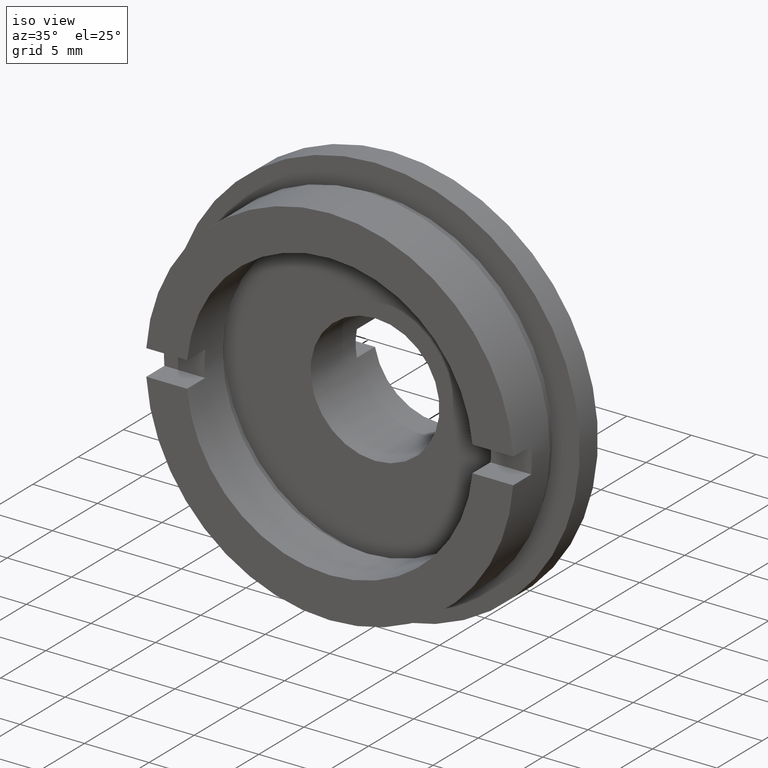
[diagram: clean part render]
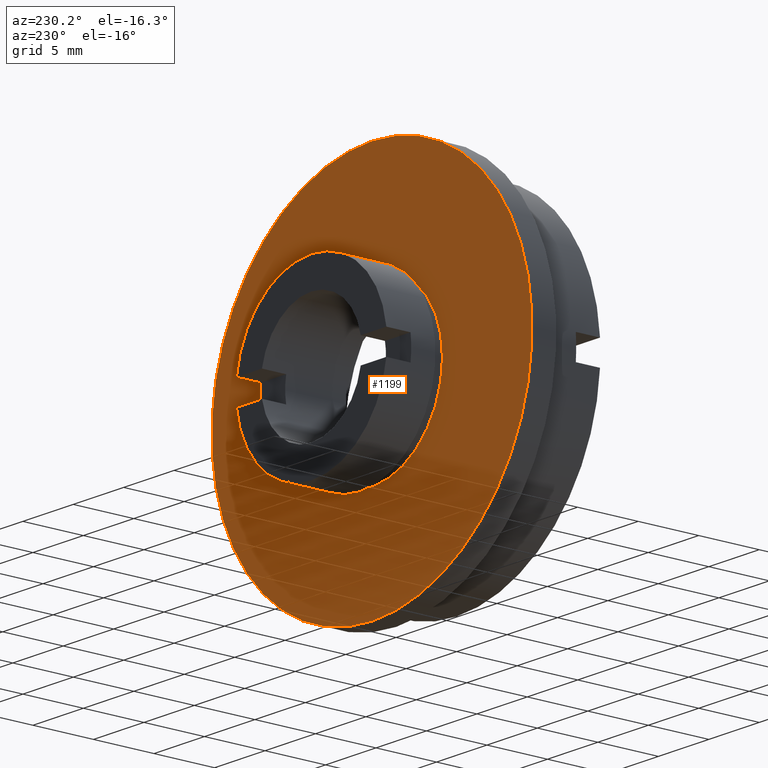
[diagram: tour spotlight — one face highlighted and labeled with its STEP entity id]
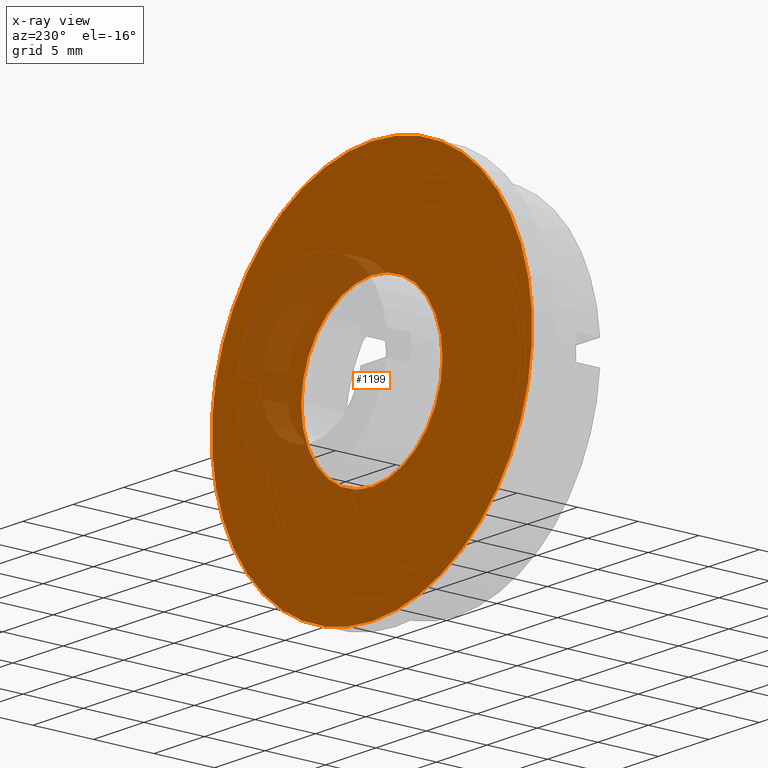
[diagram: x-ray of the same camera — body ghosted, this tour face saturated]
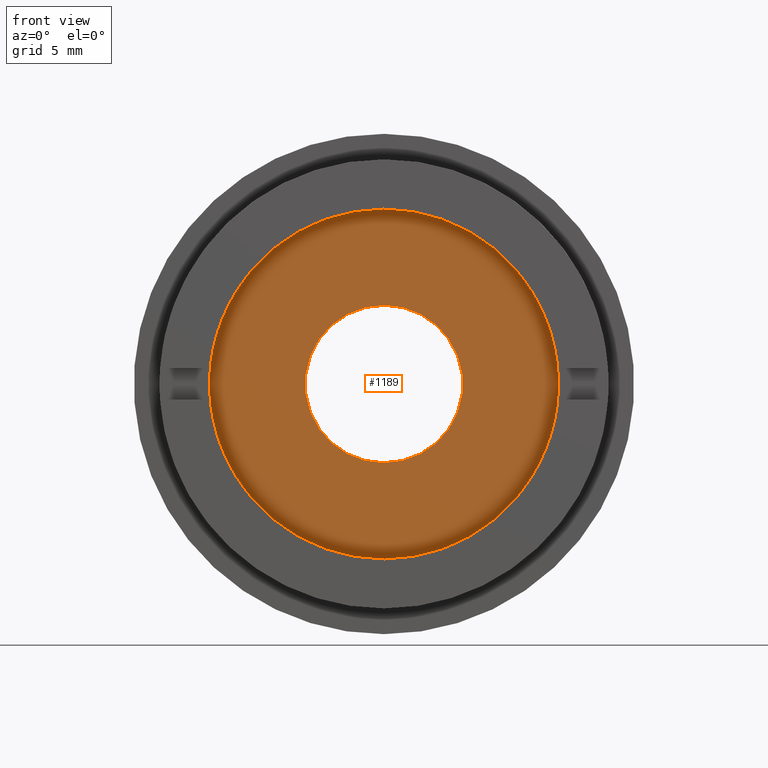
[diagram: tour spotlight — one face highlighted and labeled with its STEP entity id]
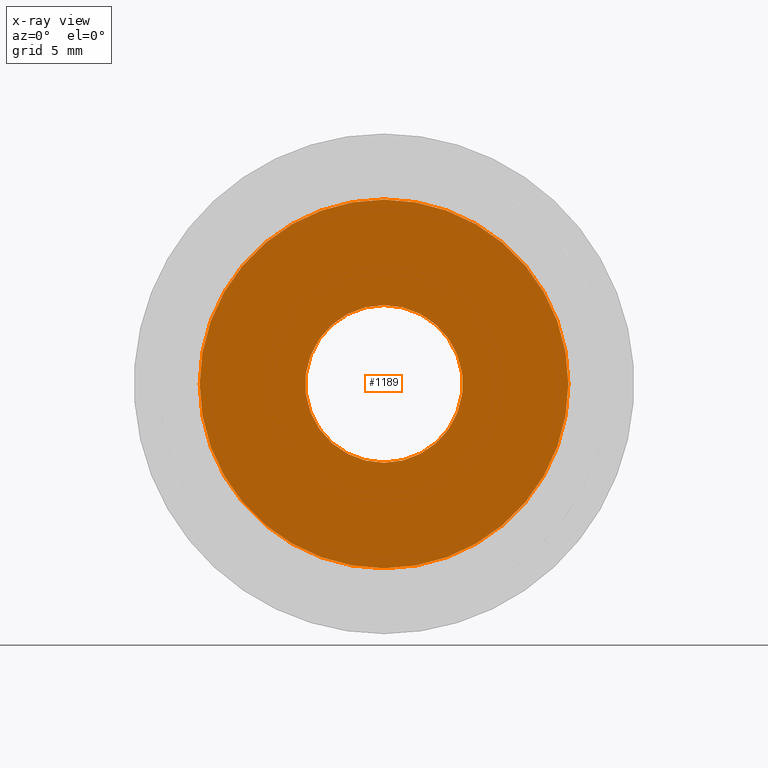
[diagram: x-ray of the same camera — body ghosted, this tour face saturated]
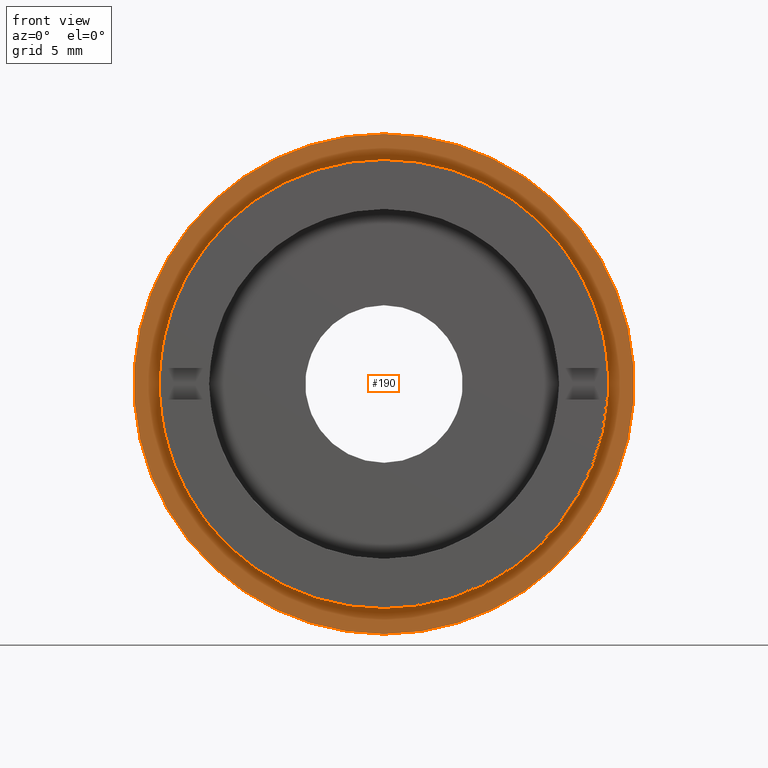
[diagram: tour spotlight — one face highlighted and labeled with its STEP entity id]
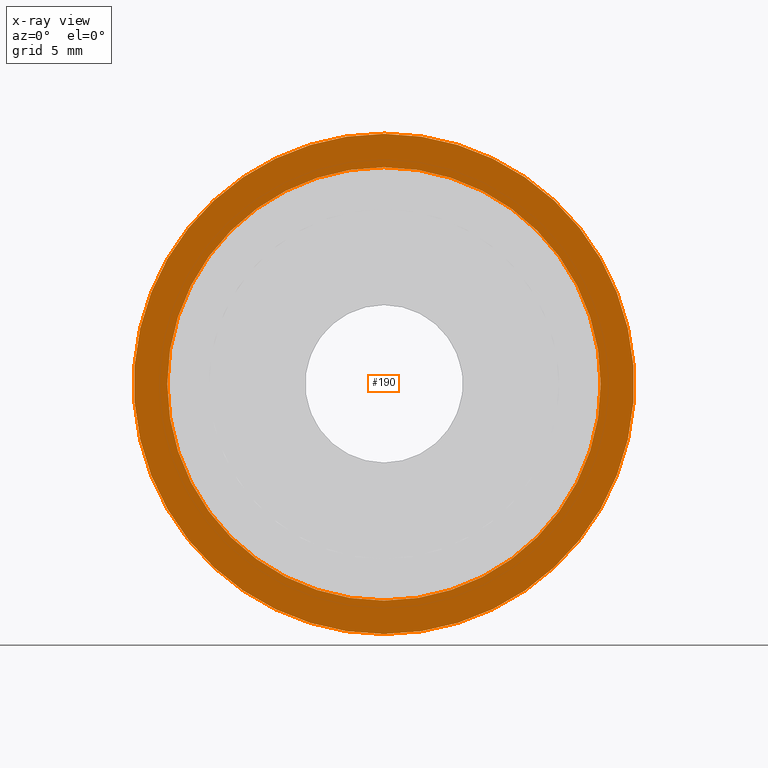
[diagram: x-ray of the same camera — body ghosted, this tour face saturated]
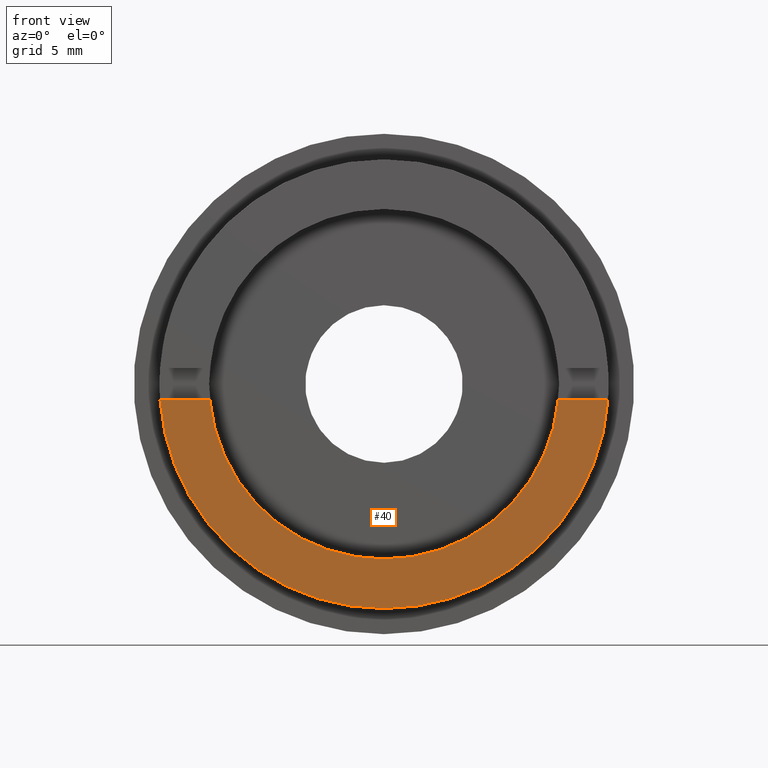
[diagram: tour spotlight — one face highlighted and labeled with its STEP entity id]
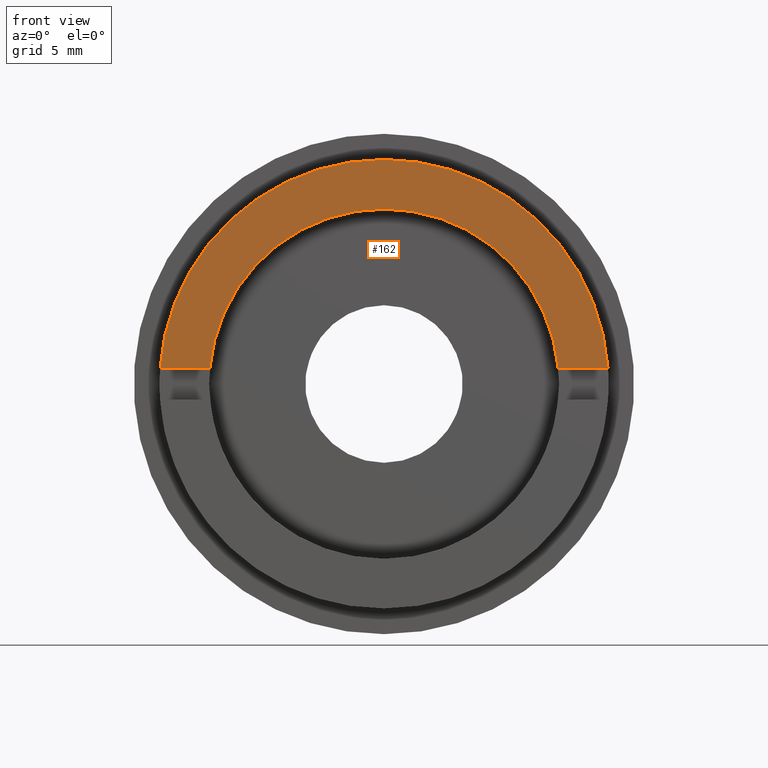
[diagram: tour spotlight — one face highlighted and labeled with its STEP entity id]
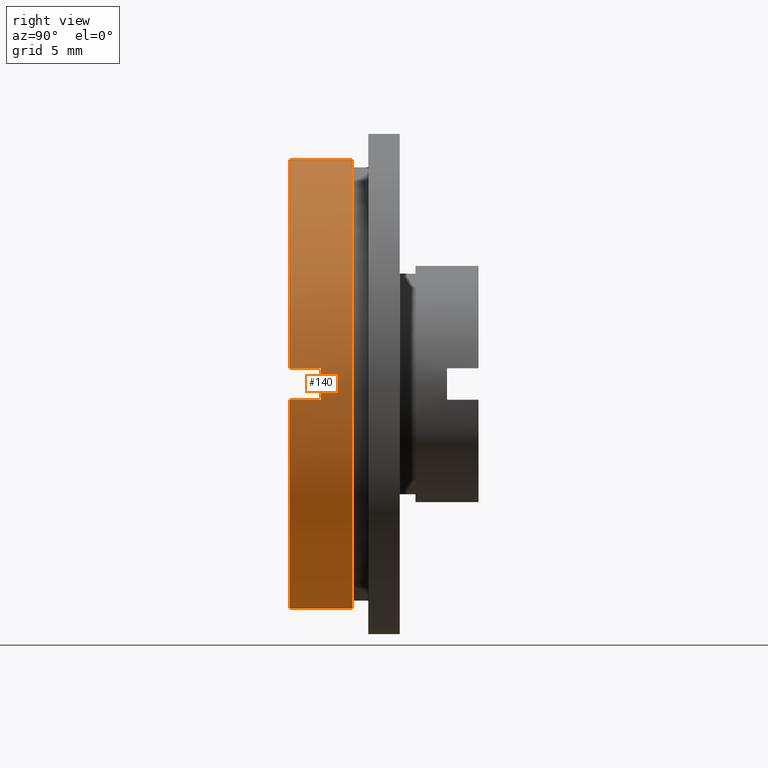
[diagram: tour spotlight — one face highlighted and labeled with its STEP entity id]
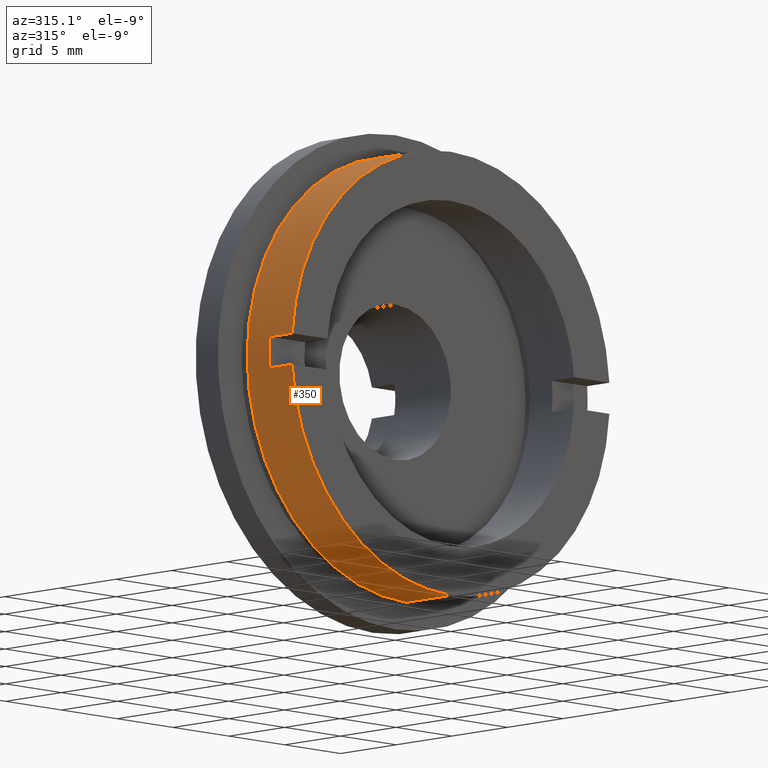
[diagram: tour spotlight — one face highlighted and labeled with its STEP entity id]
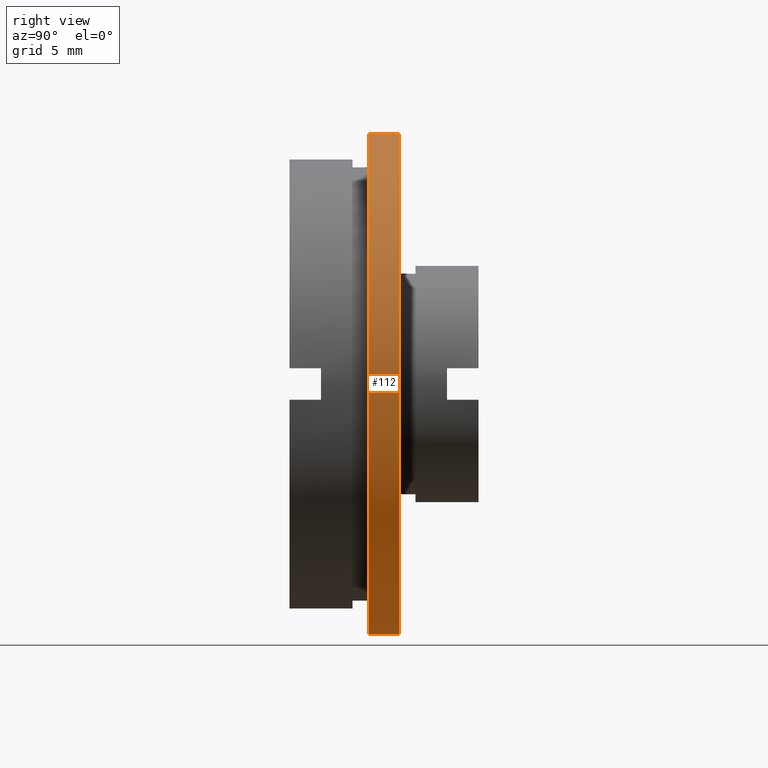
[diagram: tour spotlight — one face highlighted and labeled with its STEP entity id]
A machine part: a face-by-face anatomy tour. The part has 38 B-rep faces; the first image is the clean iso view, then the 8 largest visible faces are spotlighted one at a time (largest first), each with its STEP entity span.

Face 1 — auxiliary view, entity #1199. An x-ray twin of the same camera follows (body ghosted, this face saturated) — the face is partly hidden behind the body. In plain terms, the highlighted planar face has unit normal (-0, 1, 0).
Definition (entity closure, byte-faithful):
#66 = CIRCLE ( 'NONE', #405, 15.87499999999999600 ) ;
#69 = EDGE_CURVE ( 'NONE', #726, #1145, #1326, .T. ) ;
#77 = ORIENTED_EDGE ( 'NONE', *, *, #718, .T. ) ;
#97 = CARTESIAN_POINT ( 'NONE',  ( -6.999999999999998200, 7.000000000000000900, 0.0000000000000000000 ) ) ;
#185 = CARTESIAN_POINT ( 'NONE',  ( 8.572527594031471200E-016, 7.000000000000002700, -6.999999999999998200 ) ) ;
#200 = CARTESIAN_POINT ( 'NONE',  ( 0.0000000000000000000, 6.999999999999999100, 15.87499999999999600 ) ) ;
#221 = CARTESIAN_POINT ( 'NONE',  ( 0.0000000000000000000, 7.000000000000002700, 0.0000000000000000000 ) ) ;
#243 = PLANE ( 'NONE',  #1271 ) ;
#262 = CARTESIAN_POINT ( 'NONE',  ( 0.0000000000000000000, 6.999999999999999100, 0.0000000000000000000 ) ) ;
#297 = DIRECTION ( 'NONE',  ( -0.0000000000000000000, 1.000000000000000000, -0.0000000000000000000 ) ) ;
#379 = CARTESIAN_POINT ( 'NONE',  ( 1.944126793646422800E-015, 6.999999999999999100, -15.87499999999999600 ) ) ;
#405 = AXIS2_PLACEMENT_3D ( 'NONE', #1247, #297, #1104 ) ;
#434 = FACE_OUTER_BOUND ( 'NONE', #680, .T. ) ;
#480 = EDGE_CURVE ( 'NONE', #1145, #726, #936, .T. ) ;
#505 = VERTEX_POINT ( 'NONE', #379 ) ;
#507 = VERTEX_POINT ( 'NONE', #200 ) ;
#510 = EDGE_CURVE ( 'NONE', #507, #505, #66, .T. ) ;
#512 = DIRECTION ( 'NONE',  ( 0.0000000000000000000, 0.0000000000000000000, 1.000000000000000000 ) ) ;
#555 = FACE_BOUND ( 'NONE', #694, .T. ) ;
#680 = EDGE_LOOP ( 'NONE', ( #904, #77 ) ) ;
#689 = CIRCLE ( 'NONE', #1323, 15.87499999999999600 ) ;
#694 = EDGE_LOOP ( 'NONE', ( #1025, #969 ) ) ;
#718 = EDGE_CURVE ( 'NONE', #505, #507, #689, .T. ) ;
#726 = VERTEX_POINT ( 'NONE', #185 ) ;
#731 = DIRECTION ( 'NONE',  ( -0.0000000000000000000, 1.000000000000000000, 0.0000000000000000000 ) ) ;
#739 = AXIS2_PLACEMENT_3D ( 'NONE', #992, #1279, #886 ) ;
#886 = DIRECTION ( 'NONE',  ( 0.0000000000000000000, 0.0000000000000000000, 1.000000000000000000 ) ) ;
#904 = ORIENTED_EDGE ( 'NONE', *, *, #510, .T. ) ;
#936 = CIRCLE ( 'NONE', #739, 6.999999999999998200 ) ;
#952 = CARTESIAN_POINT ( 'NONE',  ( 0.0000000000000000000, 7.000000000000002700, 6.999999999999998200 ) ) ;
#969 = ORIENTED_EDGE ( 'NONE', *, *, #69, .F. ) ;
#992 = CARTESIAN_POINT ( 'NONE',  ( 0.0000000000000000000, 7.000000000000002700, 0.0000000000000000000 ) ) ;
#997 = DIRECTION ( 'NONE',  ( -0.0000000000000000000, 1.000000000000000000, -0.0000000000000000000 ) ) ;
#1025 = ORIENTED_EDGE ( 'NONE', *, *, #480, .F. ) ;
#1051 = AXIS2_PLACEMENT_3D ( 'NONE', #221, #997, #1282 ) ;
#1104 = DIRECTION ( 'NONE',  ( 0.0000000000000000000, 0.0000000000000000000, 1.000000000000000000 ) ) ;
#1145 = VERTEX_POINT ( 'NONE', #952 ) ;
#1199 = ADVANCED_FACE ( 'NONE', ( #434, #555 ), #243, .T. ) ;
#1231 = DIRECTION ( 'NONE',  ( -0.0000000000000000000, 1.000000000000000000, -0.0000000000000000000 ) ) ;
#1247 = CARTESIAN_POINT ( 'NONE',  ( 0.0000000000000000000, 6.999999999999999100, 0.0000000000000000000 ) ) ;
#1271 = AXIS2_PLACEMENT_3D ( 'NONE', #97, #731, #1333 ) ;
#1279 = DIRECTION ( 'NONE',  ( -0.0000000000000000000, 1.000000000000000000, -0.0000000000000000000 ) ) ;
#1282 = DIRECTION ( 'NONE',  ( 0.0000000000000000000, 0.0000000000000000000, 1.000000000000000000 ) ) ;
#1323 = AXIS2_PLACEMENT_3D ( 'NONE', #262, #1231, #512 ) ;
#1326 = CIRCLE ( 'NONE', #1051, 6.999999999999998200 ) ;
#1333 = DIRECTION ( 'NONE',  ( 0.0000000000000000000, 0.0000000000000000000, 1.000000000000000000 ) ) ;

Face 2 — front view, entity #1189. An x-ray twin of the same camera follows (body ghosted, this face saturated) — the face is partly hidden behind the body. In plain terms, the highlighted planar face has unit normal (0, -1, 0).
Definition (entity closure, byte-faithful):
#60 = ORIENTED_EDGE ( 'NONE', *, *, #933, .T. ) ;
#167 = DIRECTION ( 'NONE',  ( 0.0000000000000000000, 0.0000000000000000000, 1.000000000000000000 ) ) ;
#180 = DIRECTION ( 'NONE',  ( 0.0000000000000000000, -0.0000000000000000000, -1.000000000000000000 ) ) ;
#204 = CARTESIAN_POINT ( 'NONE',  ( 0.0000000000000000000, 5.000000000000000900, 0.0000000000000000000 ) ) ;
#211 = AXIS2_PLACEMENT_3D ( 'NONE', #204, #494, #1227 ) ;
#230 = DIRECTION ( 'NONE',  ( -0.0000000000000000000, 1.000000000000000000, -0.0000000000000000000 ) ) ;
#237 = FACE_BOUND ( 'NONE', #965, .T. ) ;
#280 = AXIS2_PLACEMENT_3D ( 'NONE', #1119, #230, #670 ) ;
#301 = CARTESIAN_POINT ( 'NONE',  ( 1.432836755002402700E-015, 5.000000000000000900, -11.69999999999999600 ) ) ;
#332 = DIRECTION ( 'NONE',  ( -0.0000000000000000000, 1.000000000000000000, -0.0000000000000000000 ) ) ;
#372 = VERTEX_POINT ( 'NONE', #301 ) ;
#374 = VERTEX_POINT ( 'NONE', #1164 ) ;
#418 = CARTESIAN_POINT ( 'NONE',  ( 0.0000000000000000000, 5.000000000000000900, 11.69999999999999600 ) ) ;
#431 = FACE_OUTER_BOUND ( 'NONE', #612, .T. ) ;
#472 = AXIS2_PLACEMENT_3D ( 'NONE', #1314, #669, #180 ) ;
#481 = AXIS2_PLACEMENT_3D ( 'NONE', #791, #332, #1167 ) ;
#494 = DIRECTION ( 'NONE',  ( -0.0000000000000000000, 1.000000000000000000, -0.0000000000000000000 ) ) ;
#534 = CIRCLE ( 'NONE', #280, 4.999999999999996400 ) ;
#540 = ORIENTED_EDGE ( 'NONE', *, *, #1200, .F. ) ;
#562 = ORIENTED_EDGE ( 'NONE', *, *, #955, .F. ) ;
#565 = ORIENTED_EDGE ( 'NONE', *, *, #895, .T. ) ;
#612 = EDGE_LOOP ( 'NONE', ( #562, #540 ) ) ;
#641 = VERTEX_POINT ( 'NONE', #1223 ) ;
#669 = DIRECTION ( 'NONE',  ( 0.0000000000000000000, -1.000000000000000000, 0.0000000000000000000 ) ) ;
#670 = DIRECTION ( 'NONE',  ( 0.0000000000000000000, 0.0000000000000000000, 1.000000000000000000 ) ) ;
#672 = CIRCLE ( 'NONE', #481, 4.999999999999996400 ) ;
#791 = CARTESIAN_POINT ( 'NONE',  ( 0.0000000000000000000, 5.000000000000000900, 0.0000000000000000000 ) ) ;
#895 = EDGE_CURVE ( 'NONE', #641, #374, #534, .T. ) ;
#933 = EDGE_CURVE ( 'NONE', #374, #641, #672, .T. ) ;
#955 = EDGE_CURVE ( 'NONE', #1011, #372, #1283, .T. ) ;
#965 = EDGE_LOOP ( 'NONE', ( #60, #565 ) ) ;
#995 = CIRCLE ( 'NONE', #211, 11.69999999999999600 ) ;
#1011 = VERTEX_POINT ( 'NONE', #418 ) ;
#1119 = CARTESIAN_POINT ( 'NONE',  ( 0.0000000000000000000, 5.000000000000000900, 0.0000000000000000000 ) ) ;
#1129 = AXIS2_PLACEMENT_3D ( 'NONE', #1306, #1184, #167 ) ;
#1137 = PLANE ( 'NONE',  #472 ) ;
#1164 = CARTESIAN_POINT ( 'NONE',  ( 0.0000000000000000000, 5.000000000000000900, 4.999999999999996400 ) ) ;
#1167 = DIRECTION ( 'NONE',  ( 0.0000000000000000000, 0.0000000000000000000, 1.000000000000000000 ) ) ;
#1184 = DIRECTION ( 'NONE',  ( -0.0000000000000000000, 1.000000000000000000, -0.0000000000000000000 ) ) ;
#1189 = ADVANCED_FACE ( 'NONE', ( #237, #431 ), #1137, .T. ) ;
#1200 = EDGE_CURVE ( 'NONE', #372, #1011, #995, .T. ) ;
#1223 = CARTESIAN_POINT ( 'NONE',  ( 6.123233995736762300E-016, 5.000000000000000900, -4.999999999999996400 ) ) ;
#1227 = DIRECTION ( 'NONE',  ( 0.0000000000000000000, 0.0000000000000000000, 1.000000000000000000 ) ) ;
#1283 = CIRCLE ( 'NONE', #1129, 11.69999999999999600 ) ;
#1306 = CARTESIAN_POINT ( 'NONE',  ( 0.0000000000000000000, 5.000000000000000900, 0.0000000000000000000 ) ) ;
#1314 = CARTESIAN_POINT ( 'NONE',  ( -4.999999999999996400, 5.000000000000000000, 0.0000000000000000000 ) ) ;

Face 3 — front view, entity #190. An x-ray twin of the same camera follows (body ghosted, this face saturated) — the face is partly hidden behind the body. In plain terms, the highlighted planar face has unit normal (0, -1, 0).
Definition (entity closure, byte-faithful):
#9 = VERTEX_POINT ( 'NONE', #799 ) ;
#14 = EDGE_CURVE ( 'NONE', #667, #749, #725, .T. ) ;
#100 = EDGE_CURVE ( 'NONE', #749, #667, #349, .T. ) ;
#138 = CARTESIAN_POINT ( 'NONE',  ( 1.944126793646422800E-015, 5.000000000000000900, -15.87499999999999600 ) ) ;
#139 = DIRECTION ( 'NONE',  ( 0.0000000000000000000, 0.0000000000000000000, 1.000000000000000000 ) ) ;
#175 = AXIS2_PLACEMENT_3D ( 'NONE', #980, #1006, #663 ) ;
#190 = ADVANCED_FACE ( 'NONE', ( #520, #567 ), #1112, .T. ) ;
#298 = DIRECTION ( 'NONE',  ( -0.0000000000000000000, 1.000000000000000000, -0.0000000000000000000 ) ) ;
#318 = DIRECTION ( 'NONE',  ( -0.0000000000000000000, 1.000000000000000000, -0.0000000000000000000 ) ) ;
#349 = CIRCLE ( 'NONE', #813, 15.87499999999999600 ) ;
#382 = CIRCLE ( 'NONE', #877, 13.74999999999999800 ) ;
#409 = CARTESIAN_POINT ( 'NONE',  ( 0.0000000000000000000, 5.000000000000000900, 0.0000000000000000000 ) ) ;
#477 = CARTESIAN_POINT ( 'NONE',  ( 0.0000000000000000000, 5.000000000000000900, 13.74999999999999800 ) ) ;
#520 = FACE_BOUND ( 'NONE', #1289, .T. ) ;
#567 = FACE_OUTER_BOUND ( 'NONE', #948, .T. ) ;
#663 = DIRECTION ( 'NONE',  ( 0.0000000000000000000, -0.0000000000000000000, -1.000000000000000000 ) ) ;
#667 = VERTEX_POINT ( 'NONE', #1111 ) ;
#679 = EDGE_CURVE ( 'NONE', #1089, #9, #736, .T. ) ;
#716 = DIRECTION ( 'NONE',  ( 0.0000000000000000000, 0.0000000000000000000, 1.000000000000000000 ) ) ;
#725 = CIRCLE ( 'NONE', #1293, 15.87499999999999600 ) ;
#736 = CIRCLE ( 'NONE', #1120, 13.74999999999999800 ) ;
#749 = VERTEX_POINT ( 'NONE', #138 ) ;
#799 = CARTESIAN_POINT ( 'NONE',  ( 1.683889348827610500E-015, 5.000000000000000900, -13.74999999999999800 ) ) ;
#813 = AXIS2_PLACEMENT_3D ( 'NONE', #1211, #1217, #139 ) ;
#822 = EDGE_CURVE ( 'NONE', #9, #1089, #382, .T. ) ;
#845 = DIRECTION ( 'NONE',  ( 0.0000000000000000000, 0.0000000000000000000, 1.000000000000000000 ) ) ;
#877 = AXIS2_PLACEMENT_3D ( 'NONE', #934, #1300, #1092 ) ;
#914 = ORIENTED_EDGE ( 'NONE', *, *, #679, .T. ) ;
#934 = CARTESIAN_POINT ( 'NONE',  ( 0.0000000000000000000, 5.000000000000000900, 0.0000000000000000000 ) ) ;
#948 = EDGE_LOOP ( 'NONE', ( #1132, #1059 ) ) ;
#980 = CARTESIAN_POINT ( 'NONE',  ( -15.87499999999999600, 5.000000000000000000, 0.0000000000000000000 ) ) ;
#1005 = CARTESIAN_POINT ( 'NONE',  ( 0.0000000000000000000, 5.000000000000000900, 0.0000000000000000000 ) ) ;
#1006 = DIRECTION ( 'NONE',  ( 0.0000000000000000000, -1.000000000000000000, 0.0000000000000000000 ) ) ;
#1040 = ORIENTED_EDGE ( 'NONE', *, *, #822, .T. ) ;
#1059 = ORIENTED_EDGE ( 'NONE', *, *, #100, .F. ) ;
#1089 = VERTEX_POINT ( 'NONE', #477 ) ;
#1092 = DIRECTION ( 'NONE',  ( 0.0000000000000000000, 0.0000000000000000000, 1.000000000000000000 ) ) ;
#1111 = CARTESIAN_POINT ( 'NONE',  ( 0.0000000000000000000, 5.000000000000000900, 15.87499999999999600 ) ) ;
#1112 = PLANE ( 'NONE',  #175 ) ;
#1120 = AXIS2_PLACEMENT_3D ( 'NONE', #1005, #318, #716 ) ;
#1132 = ORIENTED_EDGE ( 'NONE', *, *, #14, .F. ) ;
#1211 = CARTESIAN_POINT ( 'NONE',  ( 0.0000000000000000000, 5.000000000000000900, 0.0000000000000000000 ) ) ;
#1217 = DIRECTION ( 'NONE',  ( -0.0000000000000000000, 1.000000000000000000, -0.0000000000000000000 ) ) ;
#1289 = EDGE_LOOP ( 'NONE', ( #914, #1040 ) ) ;
#1293 = AXIS2_PLACEMENT_3D ( 'NONE', #409, #298, #845 ) ;
#1300 = DIRECTION ( 'NONE',  ( -0.0000000000000000000, 1.000000000000000000, -0.0000000000000000000 ) ) ;

Face 4 — front view, entity #40. In plain terms, the highlighted planar face has unit normal (0, -1, 0).
Definition (entity closure, byte-faithful):
#7 = EDGE_CURVE ( 'NONE', #437, #783, #519, .T. ) ;
#12 = DIRECTION ( 'NONE',  ( 0.0000000000000000000, 0.0000000000000000000, 1.000000000000000000 ) ) ;
#13 = EDGE_CURVE ( 'NONE', #1327, #32, #491, .T. ) ;
#19 = CARTESIAN_POINT ( 'NONE',  ( 0.0000000000000000000, 0.0000000000000000000, 0.0000000000000000000 ) ) ;
#32 = VERTEX_POINT ( 'NONE', #1269 ) ;
#40 = ADVANCED_FACE ( 'NONE', ( #723 ), #809, .T. ) ;
#68 = DIRECTION ( 'NONE',  ( 0.0000000000000000000, 0.0000000000000000000, 1.000000000000000000 ) ) ;
#105 = CIRCLE ( 'NONE', #1041, 14.24999999999999600 ) ;
#176 = EDGE_CURVE ( 'NONE', #408, #902, #468, .T. ) ;
#232 = EDGE_CURVE ( 'NONE', #1327, #408, #851, .T. ) ;
#254 = AXIS2_PLACEMENT_3D ( 'NONE', #19, #652, #68 ) ;
#338 = ORIENTED_EDGE ( 'NONE', *, *, #13, .T. ) ;
#342 = DIRECTION ( 'NONE',  ( 0.0000000000000000000, 0.0000000000000000000, 1.000000000000000000 ) ) ;
#361 = CARTESIAN_POINT ( 'NONE',  ( -14.21486897582949800, 0.0000000000000000000, -1.000000000000000000 ) ) ;
#408 = VERTEX_POINT ( 'NONE', #543 ) ;
#423 = CARTESIAN_POINT ( 'NONE',  ( -14.24999999999999600, 0.0000000000000000000, -1.000000000000000000 ) ) ;
#437 = VERTEX_POINT ( 'NONE', #361 ) ;
#455 = EDGE_CURVE ( 'NONE', #32, #783, #901, .T. ) ;
#468 = CIRCLE ( 'NONE', #558, 14.24999999999999600 ) ;
#487 = ORIENTED_EDGE ( 'NONE', *, *, #455, .T. ) ;
#488 = VECTOR ( 'NONE', #1262, 1000.000000000000000 ) ;
#491 = CIRCLE ( 'NONE', #1224, 11.09999999999999800 ) ;
#514 = DIRECTION ( 'NONE',  ( -0.0000000000000000000, 1.000000000000000000, -0.0000000000000000000 ) ) ;
#519 = LINE ( 'NONE', #794, #488 ) ;
#543 = CARTESIAN_POINT ( 'NONE',  ( 14.21486897582949800, 0.0000000000000000000, -1.000000000000000000 ) ) ;
#556 = DIRECTION ( 'NONE',  ( 1.000000000000000000, 0.0000000000000000000, 0.0000000000000000000 ) ) ;
#558 = AXIS2_PLACEMENT_3D ( 'NONE', #1023, #1014, #342 ) ;
#563 = CARTESIAN_POINT ( 'NONE',  ( 0.0000000000000000000, 0.0000000000000000000, 0.0000000000000000000 ) ) ;
#581 = CARTESIAN_POINT ( 'NONE',  ( 0.0000000000000000000, 0.0000000000000000000, 0.0000000000000000000 ) ) ;
#639 = ORIENTED_EDGE ( 'NONE', *, *, #176, .F. ) ;
#647 = DIRECTION ( 'NONE',  ( 0.0000000000000000000, -1.000000000000000000, 0.0000000000000000000 ) ) ;
#652 = DIRECTION ( 'NONE',  ( -0.0000000000000000000, 1.000000000000000000, -0.0000000000000000000 ) ) ;
#713 = DIRECTION ( 'NONE',  ( -0.0000000000000000000, 1.000000000000000000, -0.0000000000000000000 ) ) ;
#723 = FACE_OUTER_BOUND ( 'NONE', #1033, .T. ) ;
#781 = CARTESIAN_POINT ( 'NONE',  ( 11.05486318323297300, 0.0000000000000000000, -0.9999999999999943400 ) ) ;
#783 = VERTEX_POINT ( 'NONE', #1080 ) ;
#794 = CARTESIAN_POINT ( 'NONE',  ( -14.24999999999999600, 0.0000000000000000000, -1.000000000000000000 ) ) ;
#809 = PLANE ( 'NONE',  #1168 ) ;
#851 = LINE ( 'NONE', #423, #1286 ) ;
#861 = DIRECTION ( 'NONE',  ( 0.0000000000000000000, -0.0000000000000000000, -1.000000000000000000 ) ) ;
#901 = CIRCLE ( 'NONE', #254, 11.09999999999999800 ) ;
#902 = VERTEX_POINT ( 'NONE', #1004 ) ;
#932 = CARTESIAN_POINT ( 'NONE',  ( -14.24999999999999600, 0.0000000000000000000, 0.0000000000000000000 ) ) ;
#941 = EDGE_CURVE ( 'NONE', #902, #437, #105, .T. ) ;
#1004 = CARTESIAN_POINT ( 'NONE',  ( 1.745121688784977800E-015, 0.0000000000000000000, -14.24999999999999600 ) ) ;
#1014 = DIRECTION ( 'NONE',  ( -0.0000000000000000000, 1.000000000000000000, -0.0000000000000000000 ) ) ;
#1023 = CARTESIAN_POINT ( 'NONE',  ( 0.0000000000000000000, 0.0000000000000000000, 0.0000000000000000000 ) ) ;
#1033 = EDGE_LOOP ( 'NONE', ( #1302, #1047, #639, #1232, #338, #487 ) ) ;
#1041 = AXIS2_PLACEMENT_3D ( 'NONE', #563, #514, #1192 ) ;
#1047 = ORIENTED_EDGE ( 'NONE', *, *, #941, .F. ) ;
#1080 = CARTESIAN_POINT ( 'NONE',  ( -11.05486318323297500, 0.0000000000000000000, -0.9999999999999945600 ) ) ;
#1168 = AXIS2_PLACEMENT_3D ( 'NONE', #932, #647, #861 ) ;
#1192 = DIRECTION ( 'NONE',  ( 0.0000000000000000000, 0.0000000000000000000, 1.000000000000000000 ) ) ;
#1224 = AXIS2_PLACEMENT_3D ( 'NONE', #581, #713, #12 ) ;
#1232 = ORIENTED_EDGE ( 'NONE', *, *, #232, .F. ) ;
#1262 = DIRECTION ( 'NONE',  ( 1.000000000000000000, 0.0000000000000000000, 0.0000000000000000000 ) ) ;
#1269 = CARTESIAN_POINT ( 'NONE',  ( 1.359357947053561800E-015, 0.0000000000000000000, -11.09999999999999800 ) ) ;
#1286 = VECTOR ( 'NONE', #556, 1000.000000000000000 ) ;
#1302 = ORIENTED_EDGE ( 'NONE', *, *, #7, .F. ) ;
#1327 = VERTEX_POINT ( 'NONE', #781 ) ;

Face 5 — front view, entity #162. In plain terms, the highlighted planar face has unit normal (0, -1, 0).
Definition (entity closure, byte-faithful):
#1 = CARTESIAN_POINT ( 'NONE',  ( 14.21486897582949800, 0.0000000000000000000, 1.000000000000000000 ) ) ;
#57 = CIRCLE ( 'NONE', #945, 11.09999999999999800 ) ;
#62 = CARTESIAN_POINT ( 'NONE',  ( 0.0000000000000000000, 0.0000000000000000000, 0.0000000000000000000 ) ) ;
#87 = CIRCLE ( 'NONE', #319, 14.24999999999999600 ) ;
#101 = CARTESIAN_POINT ( 'NONE',  ( -14.24999999999999600, 0.0000000000000000000, 1.000000000000000000 ) ) ;
#120 = DIRECTION ( 'NONE',  ( 0.0000000000000000000, 0.0000000000000000000, 1.000000000000000000 ) ) ;
#144 = DIRECTION ( 'NONE',  ( -0.0000000000000000000, 1.000000000000000000, -0.0000000000000000000 ) ) ;
#162 = ADVANCED_FACE ( 'NONE', ( #323 ), #1291, .T. ) ;
#218 = EDGE_CURVE ( 'NONE', #778, #1263, #1143, .T. ) ;
#245 = EDGE_CURVE ( 'NONE', #1263, #1258, #57, .T. ) ;
#258 = AXIS2_PLACEMENT_3D ( 'NONE', #1166, #417, #1146 ) ;
#296 = ORIENTED_EDGE ( 'NONE', *, *, #607, .F. ) ;
#299 = VERTEX_POINT ( 'NONE', #614 ) ;
#319 = AXIS2_PLACEMENT_3D ( 'NONE', #1021, #341, #469 ) ;
#323 = FACE_OUTER_BOUND ( 'NONE', #741, .T. ) ;
#341 = DIRECTION ( 'NONE',  ( -0.0000000000000000000, 1.000000000000000000, -0.0000000000000000000 ) ) ;
#352 = EDGE_CURVE ( 'NONE', #1182, #299, #87, .T. ) ;
#383 = AXIS2_PLACEMENT_3D ( 'NONE', #710, #493, #1191 ) ;
#417 = DIRECTION ( 'NONE',  ( -0.0000000000000000000, 1.000000000000000000, -0.0000000000000000000 ) ) ;
#448 = CARTESIAN_POINT ( 'NONE',  ( 11.05486318323297500, 0.0000000000000000000, 1.000000000000003800 ) ) ;
#458 = CARTESIAN_POINT ( 'NONE',  ( -14.24999999999999600, 0.0000000000000000000, 1.000000000000000000 ) ) ;
#469 = DIRECTION ( 'NONE',  ( 0.0000000000000000000, 0.0000000000000000000, 1.000000000000000000 ) ) ;
#493 = DIRECTION ( 'NONE',  ( 0.0000000000000000000, -1.000000000000000000, 0.0000000000000000000 ) ) ;
#497 = CARTESIAN_POINT ( 'NONE',  ( 0.0000000000000000000, 0.0000000000000000000, 11.09999999999999800 ) ) ;
#551 = AXIS2_PLACEMENT_3D ( 'NONE', #62, #144, #708 ) ;
#592 = ORIENTED_EDGE ( 'NONE', *, *, #604, .F. ) ;
#594 = CARTESIAN_POINT ( 'NONE',  ( -14.21486897582949800, 0.0000000000000000000, 1.000000000000000000 ) ) ;
#604 = EDGE_CURVE ( 'NONE', #778, #1182, #1165, .T. ) ;
#607 = EDGE_CURVE ( 'NONE', #299, #1303, #1008, .T. ) ;
#614 = CARTESIAN_POINT ( 'NONE',  ( 0.0000000000000000000, 0.0000000000000000000, 14.24999999999999600 ) ) ;
#638 = VECTOR ( 'NONE', #777, 1000.000000000000000 ) ;
#656 = ORIENTED_EDGE ( 'NONE', *, *, #748, .F. ) ;
#686 = CARTESIAN_POINT ( 'NONE',  ( -11.05486318323297500, 0.0000000000000000000, 1.000000000000003800 ) ) ;
#691 = ORIENTED_EDGE ( 'NONE', *, *, #352, .F. ) ;
#708 = DIRECTION ( 'NONE',  ( 0.0000000000000000000, 0.0000000000000000000, 1.000000000000000000 ) ) ;
#710 = CARTESIAN_POINT ( 'NONE',  ( -14.24999999999999600, 0.0000000000000000000, 0.0000000000000000000 ) ) ;
#741 = EDGE_LOOP ( 'NONE', ( #656, #296, #691, #592, #894, #824 ) ) ;
#748 = EDGE_CURVE ( 'NONE', #1303, #1258, #1270, .T. ) ;
#777 = DIRECTION ( 'NONE',  ( -1.000000000000000000, 0.0000000000000000000, 0.0000000000000000000 ) ) ;
#778 = VERTEX_POINT ( 'NONE', #686 ) ;
#824 = ORIENTED_EDGE ( 'NONE', *, *, #245, .T. ) ;
#871 = DIRECTION ( 'NONE',  ( -1.000000000000000000, 0.0000000000000000000, 0.0000000000000000000 ) ) ;
#894 = ORIENTED_EDGE ( 'NONE', *, *, #218, .T. ) ;
#912 = DIRECTION ( 'NONE',  ( -0.0000000000000000000, 1.000000000000000000, -0.0000000000000000000 ) ) ;
#945 = AXIS2_PLACEMENT_3D ( 'NONE', #1215, #912, #120 ) ;
#1008 = CIRCLE ( 'NONE', #551, 14.24999999999999600 ) ;
#1021 = CARTESIAN_POINT ( 'NONE',  ( 0.0000000000000000000, 0.0000000000000000000, 0.0000000000000000000 ) ) ;
#1045 = VECTOR ( 'NONE', #871, 1000.000000000000000 ) ;
#1143 = CIRCLE ( 'NONE', #258, 11.09999999999999800 ) ;
#1146 = DIRECTION ( 'NONE',  ( 0.0000000000000000000, 0.0000000000000000000, 1.000000000000000000 ) ) ;
#1165 = LINE ( 'NONE', #458, #1045 ) ;
#1166 = CARTESIAN_POINT ( 'NONE',  ( 0.0000000000000000000, 0.0000000000000000000, 0.0000000000000000000 ) ) ;
#1182 = VERTEX_POINT ( 'NONE', #594 ) ;
#1191 = DIRECTION ( 'NONE',  ( 0.0000000000000000000, -0.0000000000000000000, -1.000000000000000000 ) ) ;
#1215 = CARTESIAN_POINT ( 'NONE',  ( 0.0000000000000000000, 0.0000000000000000000, 0.0000000000000000000 ) ) ;
#1258 = VERTEX_POINT ( 'NONE', #448 ) ;
#1263 = VERTEX_POINT ( 'NONE', #497 ) ;
#1270 = LINE ( 'NONE', #101, #638 ) ;
#1291 = PLANE ( 'NONE',  #383 ) ;
#1303 = VERTEX_POINT ( 'NONE', #1 ) ;

Face 6 — right view, entity #140. In plain terms, the highlighted cylindrical surface (partial cylindrical patch) has radius 14.25 mm, axis along (-0, 1, -0).
Definition (entity closure, byte-faithful):
#1 = CARTESIAN_POINT ( 'NONE',  ( 14.21486897582949800, 0.0000000000000000000, 1.000000000000000000 ) ) ;
#43 = CARTESIAN_POINT ( 'NONE',  ( 0.0000000000000000000, 4.000000000000000000, 14.24999999999999600 ) ) ;
#48 = DIRECTION ( 'NONE',  ( -0.0000000000000000000, -1.000000000000000000, -0.0000000000000000000 ) ) ;
#51 = EDGE_CURVE ( 'NONE', #1171, #260, #351, .T. ) ;
#62 = CARTESIAN_POINT ( 'NONE',  ( 0.0000000000000000000, 0.0000000000000000000, 0.0000000000000000000 ) ) ;
#73 = EDGE_CURVE ( 'NONE', #408, #1171, #1204, .T. ) ;
#113 = LINE ( 'NONE', #1030, #376 ) ;
#117 = ORIENTED_EDGE ( 'NONE', *, *, #73, .F. ) ;
#140 = ADVANCED_FACE ( 'NONE', ( #164 ), #452, .T. ) ;
#144 = DIRECTION ( 'NONE',  ( -0.0000000000000000000, 1.000000000000000000, -0.0000000000000000000 ) ) ;
#153 = EDGE_CURVE ( 'NONE', #260, #1303, #780, .T. ) ;
#164 = FACE_OUTER_BOUND ( 'NONE', #1186, .T. ) ;
#176 = EDGE_CURVE ( 'NONE', #408, #902, #468, .T. ) ;
#215 = CARTESIAN_POINT ( 'NONE',  ( 14.21486897582949600, 22.67749945107591400, -0.9999999999999943400 ) ) ;
#228 = CARTESIAN_POINT ( 'NONE',  ( 14.21486897582949800, 22.67749945107591400, 1.000000000000003800 ) ) ;
#260 = VERTEX_POINT ( 'NONE', #605 ) ;
#264 = DIRECTION ( 'NONE',  ( -8.881784197001252300E-016, 0.0000000000000000000, 1.000000000000000000 ) ) ;
#299 = VERTEX_POINT ( 'NONE', #614 ) ;
#330 = EDGE_CURVE ( 'NONE', #299, #832, #113, .T. ) ;
#342 = DIRECTION ( 'NONE',  ( 0.0000000000000000000, 0.0000000000000000000, 1.000000000000000000 ) ) ;
#351 = CIRCLE ( 'NONE', #1082, 14.24999999999999600 ) ;
#370 = CARTESIAN_POINT ( 'NONE',  ( 1.745121688784977800E-015, 22.67749945107591400, -14.24999999999999600 ) ) ;
#376 = VECTOR ( 'NONE', #704, 1000.000000000000000 ) ;
#408 = VERTEX_POINT ( 'NONE', #543 ) ;
#452 = CYLINDRICAL_SURFACE ( 'NONE', #585, 14.24999999999999600 ) ;
#460 = CIRCLE ( 'NONE', #1044, 14.24999999999999600 ) ;
#468 = CIRCLE ( 'NONE', #558, 14.24999999999999600 ) ;
#543 = CARTESIAN_POINT ( 'NONE',  ( 14.21486897582949800, 0.0000000000000000000, -1.000000000000000000 ) ) ;
#551 = AXIS2_PLACEMENT_3D ( 'NONE', #62, #144, #708 ) ;
#558 = AXIS2_PLACEMENT_3D ( 'NONE', #1023, #1014, #342 ) ;
#571 = CARTESIAN_POINT ( 'NONE',  ( 0.0000000000000000000, 22.67749945107591400, 0.0000000000000000000 ) ) ;
#585 = AXIS2_PLACEMENT_3D ( 'NONE', #571, #896, #991 ) ;
#598 = CARTESIAN_POINT ( 'NONE',  ( 0.0000000000000000000, 1.999999999999998200, 0.0000000000000000000 ) ) ;
#605 = CARTESIAN_POINT ( 'NONE',  ( 14.21486897582949800, 1.999999999999998200, 1.000000000000000200 ) ) ;
#607 = EDGE_CURVE ( 'NONE', #299, #1303, #1008, .T. ) ;
#614 = CARTESIAN_POINT ( 'NONE',  ( 0.0000000000000000000, 0.0000000000000000000, 14.24999999999999600 ) ) ;
#655 = EDGE_CURVE ( 'NONE', #902, #1037, #900, .T. ) ;
#664 = ORIENTED_EDGE ( 'NONE', *, *, #153, .F. ) ;
#676 = ORIENTED_EDGE ( 'NONE', *, *, #51, .F. ) ;
#700 = CARTESIAN_POINT ( 'NONE',  ( 14.21486897582949300, 2.000000000000000000, -0.9999999999999995600 ) ) ;
#704 = DIRECTION ( 'NONE',  ( -0.0000000000000000000, 1.000000000000000000, -0.0000000000000000000 ) ) ;
#708 = DIRECTION ( 'NONE',  ( 0.0000000000000000000, 0.0000000000000000000, 1.000000000000000000 ) ) ;
#743 = ORIENTED_EDGE ( 'NONE', *, *, #655, .T. ) ;
#760 = VECTOR ( 'NONE', #1287, 1000.000000000000000 ) ;
#780 = LINE ( 'NONE', #228, #760 ) ;
#795 = DIRECTION ( 'NONE',  ( -0.0000000000000000000, 1.000000000000000000, -0.0000000000000000000 ) ) ;
#817 = VECTOR ( 'NONE', #1116, 1000.000000000000000 ) ;
#832 = VERTEX_POINT ( 'NONE', #43 ) ;
#864 = EDGE_CURVE ( 'NONE', #832, #1037, #460, .T. ) ;
#896 = DIRECTION ( 'NONE',  ( -0.0000000000000000000, 1.000000000000000000, -0.0000000000000000000 ) ) ;
#900 = LINE ( 'NONE', #370, #817 ) ;
#902 = VERTEX_POINT ( 'NONE', #1004 ) ;
#910 = ORIENTED_EDGE ( 'NONE', *, *, #176, .T. ) ;
#991 = DIRECTION ( 'NONE',  ( 0.0000000000000000000, 0.0000000000000000000, 1.000000000000000000 ) ) ;
#1004 = CARTESIAN_POINT ( 'NONE',  ( 1.745121688784977800E-015, 0.0000000000000000000, -14.24999999999999600 ) ) ;
#1008 = CIRCLE ( 'NONE', #551, 14.24999999999999600 ) ;
#1014 = DIRECTION ( 'NONE',  ( -0.0000000000000000000, 1.000000000000000000, -0.0000000000000000000 ) ) ;
#1023 = CARTESIAN_POINT ( 'NONE',  ( 0.0000000000000000000, 0.0000000000000000000, 0.0000000000000000000 ) ) ;
#1030 = CARTESIAN_POINT ( 'NONE',  ( 0.0000000000000000000, 22.67749945107591400, 14.24999999999999600 ) ) ;
#1037 = VERTEX_POINT ( 'NONE', #1073 ) ;
#1044 = AXIS2_PLACEMENT_3D ( 'NONE', #1265, #795, #1195 ) ;
#1069 = ORIENTED_EDGE ( 'NONE', *, *, #607, .T. ) ;
#1070 = ORIENTED_EDGE ( 'NONE', *, *, #330, .F. ) ;
#1073 = CARTESIAN_POINT ( 'NONE',  ( 1.745121688784977800E-015, 4.000000000000000000, -14.24999999999999600 ) ) ;
#1082 = AXIS2_PLACEMENT_3D ( 'NONE', #598, #48, #264 ) ;
#1088 = ORIENTED_EDGE ( 'NONE', *, *, #864, .F. ) ;
#1116 = DIRECTION ( 'NONE',  ( -0.0000000000000000000, 1.000000000000000000, -0.0000000000000000000 ) ) ;
#1171 = VERTEX_POINT ( 'NONE', #700 ) ;
#1177 = DIRECTION ( 'NONE',  ( -0.0000000000000000000, 1.000000000000000000, -0.0000000000000000000 ) ) ;
#1186 = EDGE_LOOP ( 'NONE', ( #910, #743, #1088, #1070, #1069, #664, #676, #117 ) ) ;
#1195 = DIRECTION ( 'NONE',  ( 0.0000000000000000000, 0.0000000000000000000, 1.000000000000000000 ) ) ;
#1204 = LINE ( 'NONE', #215, #1207 ) ;
#1207 = VECTOR ( 'NONE', #1177, 1000.000000000000000 ) ;
#1265 = CARTESIAN_POINT ( 'NONE',  ( 0.0000000000000000000, 4.000000000000000000, 0.0000000000000000000 ) ) ;
#1287 = DIRECTION ( 'NONE',  ( 0.0000000000000000000, -1.000000000000000000, 0.0000000000000000000 ) ) ;
#1303 = VERTEX_POINT ( 'NONE', #1 ) ;

Face 7 — auxiliary view, entity #350. In plain terms, the highlighted cylindrical surface (partial cylindrical patch) has radius 14.25 mm, axis along (-0, 1, -0).
Definition (entity closure, byte-faithful):
#18 = CIRCLE ( 'NONE', #1126, 14.24999999999999600 ) ;
#37 = EDGE_CURVE ( 'NONE', #1032, #1090, #18, .T. ) ;
#43 = CARTESIAN_POINT ( 'NONE',  ( 0.0000000000000000000, 4.000000000000000000, 14.24999999999999600 ) ) ;
#72 = DIRECTION ( 'NONE',  ( 0.0000000000000000000, 0.0000000000000000000, 1.000000000000000000 ) ) ;
#87 = CIRCLE ( 'NONE', #319, 14.24999999999999600 ) ;
#105 = CIRCLE ( 'NONE', #1041, 14.24999999999999600 ) ;
#113 = LINE ( 'NONE', #1030, #376 ) ;
#141 = EDGE_CURVE ( 'NONE', #1037, #832, #435, .T. ) ;
#172 = EDGE_CURVE ( 'NONE', #1182, #1032, #596, .T. ) ;
#198 = EDGE_CURVE ( 'NONE', #1090, #437, #309, .T. ) ;
#201 = CARTESIAN_POINT ( 'NONE',  ( 0.0000000000000000000, 1.999999999999998200, 0.0000000000000000000 ) ) ;
#250 = DIRECTION ( 'NONE',  ( -0.0000000000000000000, 1.000000000000000000, -0.0000000000000000000 ) ) ;
#272 = CARTESIAN_POINT ( 'NONE',  ( 0.0000000000000000000, 4.000000000000000000, 0.0000000000000000000 ) ) ;
#299 = VERTEX_POINT ( 'NONE', #614 ) ;
#305 = ORIENTED_EDGE ( 'NONE', *, *, #172, .F. ) ;
#309 = LINE ( 'NONE', #696, #1085 ) ;
#319 = AXIS2_PLACEMENT_3D ( 'NONE', #1021, #341, #469 ) ;
#330 = EDGE_CURVE ( 'NONE', #299, #832, #113, .T. ) ;
#341 = DIRECTION ( 'NONE',  ( -0.0000000000000000000, 1.000000000000000000, -0.0000000000000000000 ) ) ;
#350 = ADVANCED_FACE ( 'NONE', ( #967 ), #1068, .T. ) ;
#352 = EDGE_CURVE ( 'NONE', #1182, #299, #87, .T. ) ;
#354 = AXIS2_PLACEMENT_3D ( 'NONE', #834, #1125, #72 ) ;
#359 = VECTOR ( 'NONE', #1020, 1000.000000000000000 ) ;
#361 = CARTESIAN_POINT ( 'NONE',  ( -14.21486897582949800, 0.0000000000000000000, -1.000000000000000000 ) ) ;
#370 = CARTESIAN_POINT ( 'NONE',  ( 1.745121688784977800E-015, 22.67749945107591400, -14.24999999999999600 ) ) ;
#376 = VECTOR ( 'NONE', #704, 1000.000000000000000 ) ;
#435 = CIRCLE ( 'NONE', #603, 14.24999999999999600 ) ;
#437 = VERTEX_POINT ( 'NONE', #361 ) ;
#464 = ORIENTED_EDGE ( 'NONE', *, *, #941, .T. ) ;
#469 = DIRECTION ( 'NONE',  ( 0.0000000000000000000, 0.0000000000000000000, 1.000000000000000000 ) ) ;
#474 = EDGE_LOOP ( 'NONE', ( #662, #464, #821, #804, #305, #722, #866, #627 ) ) ;
#496 = DIRECTION ( 'NONE',  ( 0.0000000000000000000, -1.000000000000000000, 0.0000000000000000000 ) ) ;
#514 = DIRECTION ( 'NONE',  ( -0.0000000000000000000, 1.000000000000000000, -0.0000000000000000000 ) ) ;
#563 = CARTESIAN_POINT ( 'NONE',  ( 0.0000000000000000000, 0.0000000000000000000, 0.0000000000000000000 ) ) ;
#594 = CARTESIAN_POINT ( 'NONE',  ( -14.21486897582949800, 0.0000000000000000000, 1.000000000000000000 ) ) ;
#596 = LINE ( 'NONE', #687, #359 ) ;
#603 = AXIS2_PLACEMENT_3D ( 'NONE', #272, #250, #1309 ) ;
#614 = CARTESIAN_POINT ( 'NONE',  ( 0.0000000000000000000, 0.0000000000000000000, 14.24999999999999600 ) ) ;
#627 = ORIENTED_EDGE ( 'NONE', *, *, #141, .F. ) ;
#655 = EDGE_CURVE ( 'NONE', #902, #1037, #900, .T. ) ;
#662 = ORIENTED_EDGE ( 'NONE', *, *, #655, .F. ) ;
#687 = CARTESIAN_POINT ( 'NONE',  ( -14.21486897582949800, 22.67749945107591400, 1.000000000000003800 ) ) ;
#696 = CARTESIAN_POINT ( 'NONE',  ( -14.21486897582949600, 22.67749945107591400, -0.9999999999999943400 ) ) ;
#704 = DIRECTION ( 'NONE',  ( -0.0000000000000000000, 1.000000000000000000, -0.0000000000000000000 ) ) ;
#722 = ORIENTED_EDGE ( 'NONE', *, *, #352, .T. ) ;
#786 = DIRECTION ( 'NONE',  ( -0.0000000000000000000, -1.000000000000000000, -0.0000000000000000000 ) ) ;
#804 = ORIENTED_EDGE ( 'NONE', *, *, #37, .F. ) ;
#817 = VECTOR ( 'NONE', #1116, 1000.000000000000000 ) ;
#821 = ORIENTED_EDGE ( 'NONE', *, *, #198, .F. ) ;
#832 = VERTEX_POINT ( 'NONE', #43 ) ;
#834 = CARTESIAN_POINT ( 'NONE',  ( 0.0000000000000000000, 22.67749945107591400, 0.0000000000000000000 ) ) ;
#866 = ORIENTED_EDGE ( 'NONE', *, *, #330, .T. ) ;
#900 = LINE ( 'NONE', #370, #817 ) ;
#902 = VERTEX_POINT ( 'NONE', #1004 ) ;
#920 = CARTESIAN_POINT ( 'NONE',  ( -14.21486897582949800, 1.999999999999998200, 1.000000000000000200 ) ) ;
#941 = EDGE_CURVE ( 'NONE', #902, #437, #105, .T. ) ;
#958 = CARTESIAN_POINT ( 'NONE',  ( -14.21486897582949600, 2.000000000000000000, -0.9999999999999995600 ) ) ;
#967 = FACE_OUTER_BOUND ( 'NONE', #474, .T. ) ;
#1004 = CARTESIAN_POINT ( 'NONE',  ( 1.745121688784977800E-015, 0.0000000000000000000, -14.24999999999999600 ) ) ;
#1020 = DIRECTION ( 'NONE',  ( -0.0000000000000000000, 1.000000000000000000, -0.0000000000000000000 ) ) ;
#1021 = CARTESIAN_POINT ( 'NONE',  ( 0.0000000000000000000, 0.0000000000000000000, 0.0000000000000000000 ) ) ;
#1030 = CARTESIAN_POINT ( 'NONE',  ( 0.0000000000000000000, 22.67749945107591400, 14.24999999999999600 ) ) ;
#1032 = VERTEX_POINT ( 'NONE', #920 ) ;
#1037 = VERTEX_POINT ( 'NONE', #1073 ) ;
#1041 = AXIS2_PLACEMENT_3D ( 'NONE', #563, #514, #1192 ) ;
#1068 = CYLINDRICAL_SURFACE ( 'NONE', #354, 14.24999999999999600 ) ;
#1073 = CARTESIAN_POINT ( 'NONE',  ( 1.745121688784977800E-015, 4.000000000000000000, -14.24999999999999600 ) ) ;
#1085 = VECTOR ( 'NONE', #496, 1000.000000000000000 ) ;
#1090 = VERTEX_POINT ( 'NONE', #958 ) ;
#1116 = DIRECTION ( 'NONE',  ( -0.0000000000000000000, 1.000000000000000000, -0.0000000000000000000 ) ) ;
#1125 = DIRECTION ( 'NONE',  ( -0.0000000000000000000, 1.000000000000000000, -0.0000000000000000000 ) ) ;
#1126 = AXIS2_PLACEMENT_3D ( 'NONE', #201, #786, #1337 ) ;
#1182 = VERTEX_POINT ( 'NONE', #594 ) ;
#1192 = DIRECTION ( 'NONE',  ( 0.0000000000000000000, 0.0000000000000000000, 1.000000000000000000 ) ) ;
#1309 = DIRECTION ( 'NONE',  ( 0.0000000000000000000, 0.0000000000000000000, 1.000000000000000000 ) ) ;
#1337 = DIRECTION ( 'NONE',  ( 0.0000000000000000000, 0.0000000000000000000, 1.000000000000000000 ) ) ;

Face 8 — right view, entity #112. In plain terms, the highlighted cylindrical surface (partial cylindrical patch) has radius 15.875 mm, axis along (-0, 1, -0).
Definition (entity closure, byte-faithful):
#6 = EDGE_LOOP ( 'NONE', ( #402, #1056, #942, #577 ) ) ;
#14 = EDGE_CURVE ( 'NONE', #667, #749, #725, .T. ) ;
#66 = CIRCLE ( 'NONE', #405, 15.87499999999999600 ) ;
#76 = LINE ( 'NONE', #135, #147 ) ;
#112 = ADVANCED_FACE ( 'NONE', ( #149 ), #130, .T. ) ;
#130 = CYLINDRICAL_SURFACE ( 'NONE', #727, 15.87499999999999600 ) ;
#135 = CARTESIAN_POINT ( 'NONE',  ( 1.944126793646422800E-015, 22.67749945107591400, -15.87499999999999600 ) ) ;
#138 = CARTESIAN_POINT ( 'NONE',  ( 1.944126793646422800E-015, 5.000000000000000900, -15.87499999999999600 ) ) ;
#147 = VECTOR ( 'NONE', #570, 1000.000000000000000 ) ;
#149 = FACE_OUTER_BOUND ( 'NONE', #6, .T. ) ;
#159 = DIRECTION ( 'NONE',  ( -0.0000000000000000000, 1.000000000000000000, -0.0000000000000000000 ) ) ;
#165 = CARTESIAN_POINT ( 'NONE',  ( 0.0000000000000000000, 22.67749945107591400, 0.0000000000000000000 ) ) ;
#200 = CARTESIAN_POINT ( 'NONE',  ( 0.0000000000000000000, 6.999999999999999100, 15.87499999999999600 ) ) ;
#284 = LINE ( 'NONE', #1336, #1297 ) ;
#286 = EDGE_CURVE ( 'NONE', #749, #505, #76, .T. ) ;
#297 = DIRECTION ( 'NONE',  ( -0.0000000000000000000, 1.000000000000000000, -0.0000000000000000000 ) ) ;
#298 = DIRECTION ( 'NONE',  ( -0.0000000000000000000, 1.000000000000000000, -0.0000000000000000000 ) ) ;
#379 = CARTESIAN_POINT ( 'NONE',  ( 1.944126793646422800E-015, 6.999999999999999100, -15.87499999999999600 ) ) ;
#402 = ORIENTED_EDGE ( 'NONE', *, *, #14, .T. ) ;
#405 = AXIS2_PLACEMENT_3D ( 'NONE', #1247, #297, #1104 ) ;
#409 = CARTESIAN_POINT ( 'NONE',  ( 0.0000000000000000000, 5.000000000000000900, 0.0000000000000000000 ) ) ;
#505 = VERTEX_POINT ( 'NONE', #379 ) ;
#507 = VERTEX_POINT ( 'NONE', #200 ) ;
#510 = EDGE_CURVE ( 'NONE', #507, #505, #66, .T. ) ;
#570 = DIRECTION ( 'NONE',  ( -0.0000000000000000000, 1.000000000000000000, -0.0000000000000000000 ) ) ;
#577 = ORIENTED_EDGE ( 'NONE', *, *, #816, .F. ) ;
#667 = VERTEX_POINT ( 'NONE', #1111 ) ;
#725 = CIRCLE ( 'NONE', #1293, 15.87499999999999600 ) ;
#727 = AXIS2_PLACEMENT_3D ( 'NONE', #165, #159, #1277 ) ;
#749 = VERTEX_POINT ( 'NONE', #138 ) ;
#816 = EDGE_CURVE ( 'NONE', #667, #507, #284, .T. ) ;
#845 = DIRECTION ( 'NONE',  ( 0.0000000000000000000, 0.0000000000000000000, 1.000000000000000000 ) ) ;
#942 = ORIENTED_EDGE ( 'NONE', *, *, #510, .F. ) ;
#946 = DIRECTION ( 'NONE',  ( -0.0000000000000000000, 1.000000000000000000, -0.0000000000000000000 ) ) ;
#1056 = ORIENTED_EDGE ( 'NONE', *, *, #286, .T. ) ;
#1104 = DIRECTION ( 'NONE',  ( 0.0000000000000000000, 0.0000000000000000000, 1.000000000000000000 ) ) ;
#1111 = CARTESIAN_POINT ( 'NONE',  ( 0.0000000000000000000, 5.000000000000000900, 15.87499999999999600 ) ) ;
#1247 = CARTESIAN_POINT ( 'NONE',  ( 0.0000000000000000000, 6.999999999999999100, 0.0000000000000000000 ) ) ;
#1277 = DIRECTION ( 'NONE',  ( 0.0000000000000000000, 0.0000000000000000000, 1.000000000000000000 ) ) ;
#1293 = AXIS2_PLACEMENT_3D ( 'NONE', #409, #298, #845 ) ;
#1297 = VECTOR ( 'NONE', #946, 1000.000000000000000 ) ;
#1336 = CARTESIAN_POINT ( 'NONE',  ( 0.0000000000000000000, 22.67749945107591400, 15.87499999999999600 ) ) ;